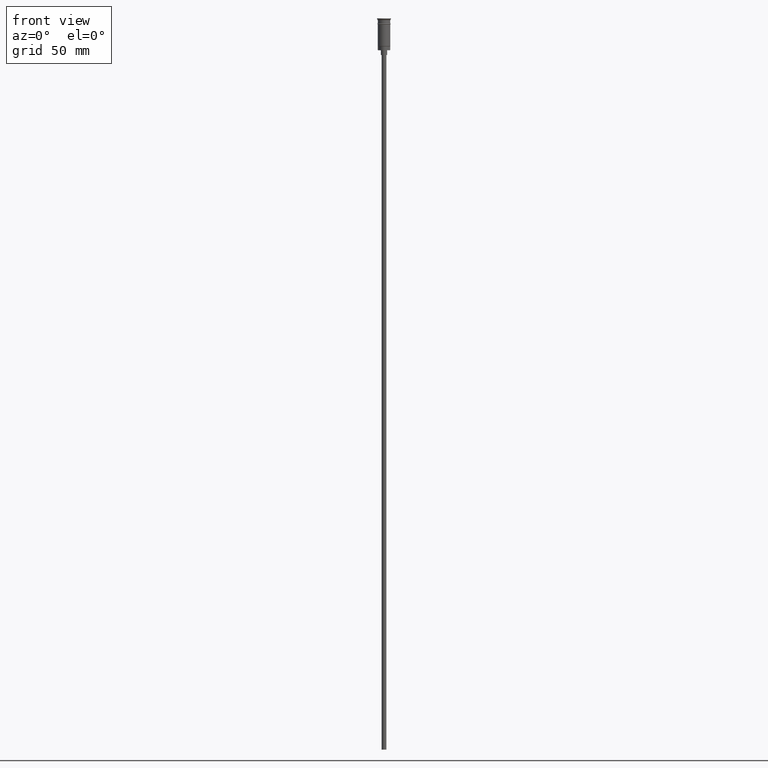
[diagram: clean part render]
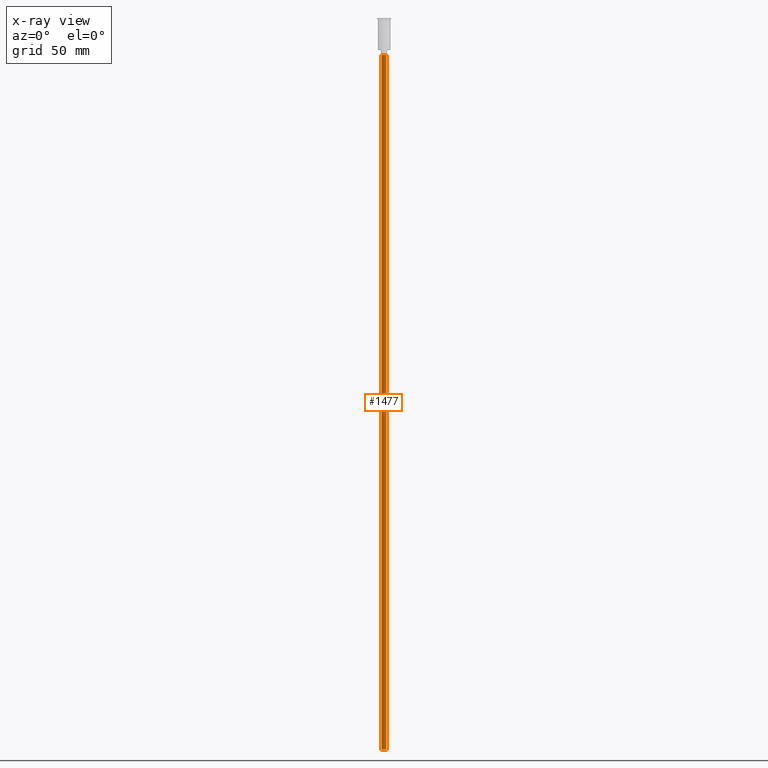
[diagram: x-ray — body ghosted, one internal face saturated and labeled with its STEP entity id]
A machine part, front view, then the same camera in x-ray: the body is ghosted and one INTERNAL B-rep face — a face not visible from any outside direction — is saturated and labeled: STEP entity #1477.
In plain terms, the highlighted cylindrical surface (edge-blend (fillet) strip) has radius 1.5 mm, axis along (-0, -0, 1).
Its self-contained STEP definition (entity closure, byte-faithful):
#4 = DIRECTION ( 'NONE',  ( 1.000000000000000000, 0.000000000000000000, 0.000000000000000000 ) ) ;
#8 = CARTESIAN_POINT ( 'NONE',  ( 1.500000000000000222, 0.000000000000000000, -470.5000000000000568 ) ) ;
#91 = DIRECTION ( 'NONE',  ( 0.000000000000000000, 0.000000000000000000, -1.000000000000000000 ) ) ;
#113 = CYLINDRICAL_SURFACE ( 'NONE', #1079, 1.500000000000000222 ) ;
#118 = VERTEX_POINT ( 'NONE', #1473 ) ;
#226 = EDGE_CURVE ( 'NONE', #673, #118, #502, .T. ) ;
#425 = DIRECTION ( 'NONE',  ( 0.000000000000000000, 0.000000000000000000, -1.000000000000000000 ) ) ;
#502 = CIRCLE ( 'NONE', #1151, 1.500000000000000222 ) ;
#537 = CARTESIAN_POINT ( 'NONE',  ( -1.500000000000000222, 1.836970198721030181E-16, -470.5000000000000568 ) ) ;
#543 = CARTESIAN_POINT ( 'NONE',  ( 1.500000000000000222, 0.000000000000000000, -470.5000000000000568 ) ) ;
#597 = EDGE_CURVE ( 'NONE', #1097, #673, #1115, .T. ) ;
#604 = CARTESIAN_POINT ( 'NONE',  ( 0.000000000000000000, 0.000000000000000000, -470.5000000000000568 ) ) ;
#673 = VERTEX_POINT ( 'NONE', #1404 ) ;
#674 = EDGE_CURVE ( 'NONE', #1256, #118, #1260, .T. ) ;
#733 = ORIENTED_EDGE ( 'NONE', *, *, #826, .F. ) ;
#789 = CIRCLE ( 'NONE', #923, 1.500000000000000222 ) ;
#801 = DIRECTION ( 'NONE',  ( -0.000000000000000000, -0.000000000000000000, 1.000000000000000000 ) ) ;
#826 = EDGE_CURVE ( 'NONE', #1097, #1256, #789, .T. ) ;
#837 = ORIENTED_EDGE ( 'NONE', *, *, #674, .F. ) ;
#873 = VECTOR ( 'NONE', #801, 1000.000000000000000 ) ;
#923 = AXIS2_PLACEMENT_3D ( 'NONE', #1560, #91, #962 ) ;
#953 = CARTESIAN_POINT ( 'NONE',  ( 0.000000000000000000, 0.000000000000000000, -23.49999999999999645 ) ) ;
#962 = DIRECTION ( 'NONE',  ( -1.000000000000000000, 0.000000000000000000, 0.000000000000000000 ) ) ;
#970 = FACE_OUTER_BOUND ( 'NONE', #1337, .T. ) ;
#1079 = AXIS2_PLACEMENT_3D ( 'NONE', #604, #1098, #4 ) ;
#1097 = VERTEX_POINT ( 'NONE', #543 ) ;
#1098 = DIRECTION ( 'NONE',  ( -0.000000000000000000, -0.000000000000000000, 1.000000000000000000 ) ) ;
#1115 = LINE ( 'NONE', #8, #873 ) ;
#1130 = VECTOR ( 'NONE', #1519, 1000.000000000000000 ) ;
#1151 = AXIS2_PLACEMENT_3D ( 'NONE', #953, #425, #1450 ) ;
#1256 = VERTEX_POINT ( 'NONE', #1306 ) ;
#1260 = LINE ( 'NONE', #537, #1130 ) ;
#1293 = ORIENTED_EDGE ( 'NONE', *, *, #226, .T. ) ;
#1306 = CARTESIAN_POINT ( 'NONE',  ( -1.500000000000000222, 1.836970198721030181E-16, -470.5000000000000568 ) ) ;
#1337 = EDGE_LOOP ( 'NONE', ( #837, #733, #1351, #1293 ) ) ;
#1351 = ORIENTED_EDGE ( 'NONE', *, *, #597, .T. ) ;
#1404 = CARTESIAN_POINT ( 'NONE',  ( 1.500000000000000222, 0.000000000000000000, -23.49999999999999645 ) ) ;
#1450 = DIRECTION ( 'NONE',  ( -1.000000000000000000, 0.000000000000000000, 0.000000000000000000 ) ) ;
#1473 = CARTESIAN_POINT ( 'NONE',  ( -1.500000000000000222, 1.836970198721030181E-16, -23.49999999999999645 ) ) ;
#1477 = ADVANCED_FACE ( 'NONE', ( #970 ), #113, .T. ) ;
#1519 = DIRECTION ( 'NONE',  ( -0.000000000000000000, -0.000000000000000000, 1.000000000000000000 ) ) ;
#1560 = CARTESIAN_POINT ( 'NONE',  ( 0.000000000000000000, 0.000000000000000000, -470.5000000000000568 ) ) ;